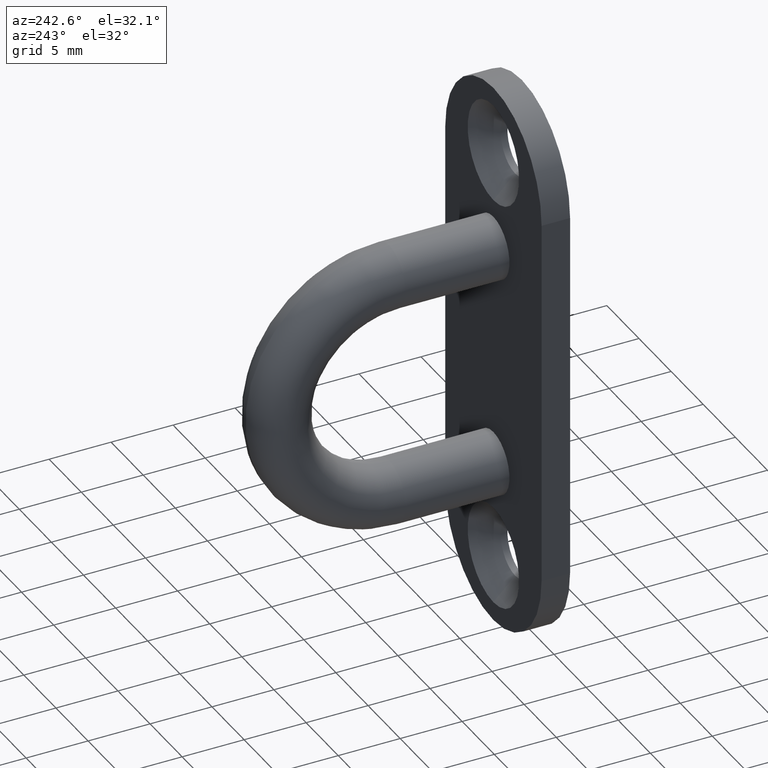
[diagram: clean part render]
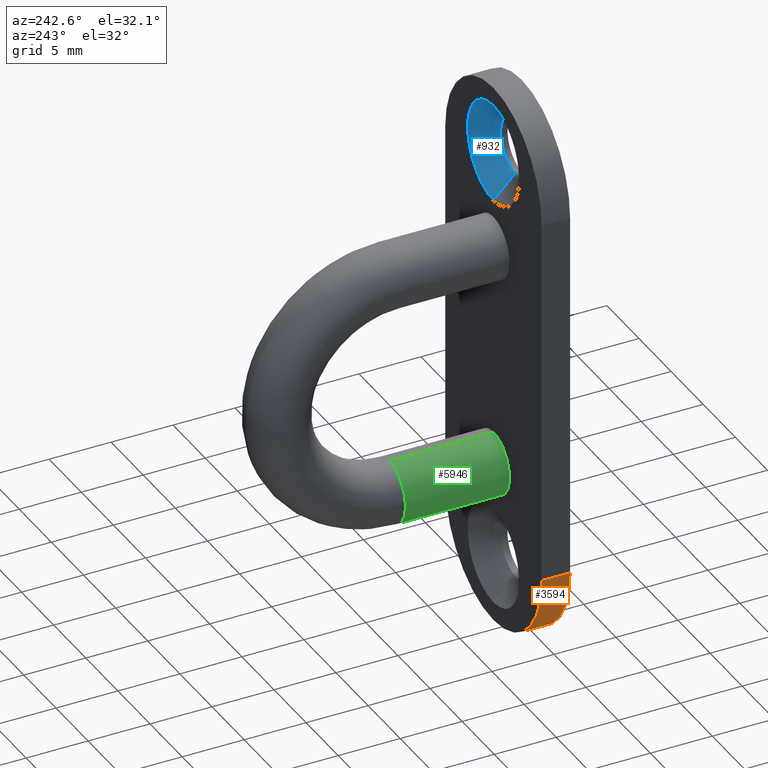
[diagram: same view with three faces highlighted in distinct colors, each labeled with its STEP entity id]
A machine part, auxiliary view with three faces highlighted in distinct colors.
Their STEP definitions:

[orange] entity #3594 — the highlighted cylindrical surface (partial cylindrical patch) has radius 7.5 mm, axis along (-0, -1, -0).
#407 = AXIS2_PLACEMENT_3D ( 'NONE', #5144, #12384, #13483 ) ;
#821 = EDGE_CURVE ( 'NONE', #8205, #6203, #5548, .T. ) ;
#969 = ORIENTED_EDGE ( 'NONE', *, *, #8778, .T. ) ;
#2470 = CARTESIAN_POINT ( 'NONE',  ( -7.464513823374346600E-015, 2.299999999999999800, -22.50000000000001100 ) ) ;
#3094 = CIRCLE ( 'NONE', #5917, 7.500000000000010700 ) ;
#3114 = DIRECTION ( 'NONE',  ( 0.0000000000000000000, 1.000000000000000000, 0.0000000000000000000 ) ) ;
#3124 = CARTESIAN_POINT ( 'NONE',  ( -7.500000000000005300, 2.299999999999999800, -15.00000000000000000 ) ) ;
#3594 = ADVANCED_FACE ( 'NONE', ( #7540 ), #12568, .T. ) ;
#3914 = VECTOR ( 'NONE', #6634, 1000.000000000000000 ) ;
#4064 = CARTESIAN_POINT ( 'NONE',  ( -7.464513823374346600E-015, 2.299999999999999800, -22.50000000000001400 ) ) ;
#4976 = CIRCLE ( 'NONE', #407, 7.500000000000010700 ) ;
#5144 = CARTESIAN_POINT ( 'NONE',  ( -7.464513823374346600E-015, 0.0000000000000000000, -15.00000000000000000 ) ) ;
#5548 = LINE ( 'NONE', #5781, #3914 ) ;
#5781 = CARTESIAN_POINT ( 'NONE',  ( -7.500000000000005300, 2.299999999999999800, -15.00000000000000000 ) ) ;
#5864 = CARTESIAN_POINT ( 'NONE',  ( -7.500000000000005300, 0.0000000000000000000, -15.00000000000000000 ) ) ;
#5917 = AXIS2_PLACEMENT_3D ( 'NONE', #8348, #3114, #9481 ) ;
#5971 = DIRECTION ( 'NONE',  ( 0.0000000000000000000, 0.0000000000000000000, -1.000000000000000000 ) ) ;
#6203 = VERTEX_POINT ( 'NONE', #5864 ) ;
#6272 = ORIENTED_EDGE ( 'NONE', *, *, #821, .F. ) ;
#6590 = LINE ( 'NONE', #2470, #9540 ) ;
#6634 = DIRECTION ( 'NONE',  ( -0.0000000000000000000, -1.000000000000000000, -0.0000000000000000000 ) ) ;
#7042 = DIRECTION ( 'NONE',  ( -0.0000000000000000000, -1.000000000000000000, -0.0000000000000000000 ) ) ;
#7388 = AXIS2_PLACEMENT_3D ( 'NONE', #12073, #7042, #5971 ) ;
#7540 = FACE_OUTER_BOUND ( 'NONE', #7820, .T. ) ;
#7658 = ORIENTED_EDGE ( 'NONE', *, *, #12894, .F. ) ;
#7820 = EDGE_LOOP ( 'NONE', ( #7658, #969, #9213, #6272 ) ) ;
#8130 = VERTEX_POINT ( 'NONE', #12395 ) ;
#8205 = VERTEX_POINT ( 'NONE', #3124 ) ;
#8299 = VERTEX_POINT ( 'NONE', #4064 ) ;
#8348 = CARTESIAN_POINT ( 'NONE',  ( -7.464513823374346600E-015, 2.299999999999999800, -15.00000000000000000 ) ) ;
#8778 = EDGE_CURVE ( 'NONE', #8299, #8130, #6590, .T. ) ;
#9213 = ORIENTED_EDGE ( 'NONE', *, *, #10043, .T. ) ;
#9481 = DIRECTION ( 'NONE',  ( 0.0000000000000000000, 0.0000000000000000000, 1.000000000000000000 ) ) ;
#9540 = VECTOR ( 'NONE', #12909, 1000.000000000000000 ) ;
#10043 = EDGE_CURVE ( 'NONE', #8130, #6203, #4976, .T. ) ;
#12073 = CARTESIAN_POINT ( 'NONE',  ( -7.464513823374346600E-015, 2.299999999999999800, -15.00000000000000000 ) ) ;
#12384 = DIRECTION ( 'NONE',  ( 0.0000000000000000000, 1.000000000000000000, 0.0000000000000000000 ) ) ;
#12395 = CARTESIAN_POINT ( 'NONE',  ( -7.464513823374346600E-015, 0.0000000000000000000, -22.50000000000001400 ) ) ;
#12568 = CYLINDRICAL_SURFACE ( 'NONE', #7388, 7.500000000000009800 ) ;
#12894 = EDGE_CURVE ( 'NONE', #8299, #8205, #3094, .T. ) ;
#12909 = DIRECTION ( 'NONE',  ( -0.0000000000000000000, -1.000000000000000000, -0.0000000000000000000 ) ) ;
#13483 = DIRECTION ( 'NONE',  ( 0.0000000000000000000, 0.0000000000000000000, 1.000000000000000000 ) ) ;

[blue] entity #932 — the highlighted conical surface has half-angle 45 deg.
#308 = CARTESIAN_POINT ( 'NONE',  ( 6.000769315822030900E-015, 0.5500000000000088200, 17.00000000000000000 ) ) ;
#850 = ORIENTED_EDGE ( 'NONE', *, *, #10717, .T. ) ;
#860 = DIRECTION ( 'NONE',  ( -0.0000000000000000000, -1.000000000000000000, -0.0000000000000000000 ) ) ;
#896 = VECTOR ( 'NONE', #3052, 999.9999999999998900 ) ;
#932 = ADVANCED_FACE ( 'NONE', ( #1649 ), #12374, .F. ) ;
#992 = ORIENTED_EDGE ( 'NONE', *, *, #8381, .F. ) ;
#1486 = DIRECTION ( 'NONE',  ( 0.0000000000000000000, 1.000000000000000000, 0.0000000000000000000 ) ) ;
#1649 = FACE_OUTER_BOUND ( 'NONE', #12891, .T. ) ;
#1690 = CARTESIAN_POINT ( 'NONE',  ( 6.000769315822030900E-015, 0.5500000000000088200, 17.00000000000000000 ) ) ;
#1706 = AXIS2_PLACEMENT_3D ( 'NONE', #308, #1486, #10667 ) ;
#2023 = LINE ( 'NONE', #10938, #8342 ) ;
#2221 = CARTESIAN_POINT ( 'NONE',  ( 6.490628035480972300E-015, 2.299999999999999800, 13.00000000000000500 ) ) ;
#2252 = CARTESIAN_POINT ( 'NONE',  ( 6.000769315822030900E-015, 2.299999999999999800, 20.99999999999999600 ) ) ;
#2791 = VERTEX_POINT ( 'NONE', #7700 ) ;
#3021 = ORIENTED_EDGE ( 'NONE', *, *, #8465, .F. ) ;
#3052 = DIRECTION ( 'NONE',  ( 0.0000000000000000000, 0.7071067811865462400, 0.7071067811865489100 ) ) ;
#3252 = CIRCLE ( 'NONE', #8418, 3.999999999999996400 ) ;
#4207 = ORIENTED_EDGE ( 'NONE', *, *, #12022, .F. ) ;
#4353 = VERTEX_POINT ( 'NONE', #6373 ) ;
#4966 = DIRECTION ( 'NONE',  ( 0.0000000000000000000, 1.000000000000000000, 0.0000000000000000000 ) ) ;
#5387 = CIRCLE ( 'NONE', #1706, 2.249999999999998700 ) ;
#6373 = CARTESIAN_POINT ( 'NONE',  ( 6.000769315822030900E-015, 0.5500000000000088200, 14.75000000000000400 ) ) ;
#7700 = CARTESIAN_POINT ( 'NONE',  ( 6.276314845630185800E-015, 0.5500000000000088200, 19.25000000000000000 ) ) ;
#8342 = VECTOR ( 'NONE', #13116, 999.9999999999998900 ) ;
#8381 = EDGE_CURVE ( 'NONE', #2791, #4353, #5387, .T. ) ;
#8418 = AXIS2_PLACEMENT_3D ( 'NONE', #9216, #860, #11293 ) ;
#8465 = EDGE_CURVE ( 'NONE', #12911, #10538, #3252, .T. ) ;
#9216 = CARTESIAN_POINT ( 'NONE',  ( 6.000769315822030900E-015, 2.299999999999999800, 17.00000000000000000 ) ) ;
#9283 = CARTESIAN_POINT ( 'NONE',  ( 6.000769315822030900E-015, 0.5500000000000088200, 19.25000000000000000 ) ) ;
#10186 = DIRECTION ( 'NONE',  ( 0.0000000000000000000, 0.0000000000000000000, 1.000000000000000000 ) ) ;
#10252 = AXIS2_PLACEMENT_3D ( 'NONE', #1690, #4966, #10186 ) ;
#10538 = VERTEX_POINT ( 'NONE', #2252 ) ;
#10667 = DIRECTION ( 'NONE',  ( 0.0000000000000000000, 0.0000000000000000000, 1.000000000000000000 ) ) ;
#10717 = EDGE_CURVE ( 'NONE', #2791, #10538, #12429, .T. ) ;
#10938 = CARTESIAN_POINT ( 'NONE',  ( 6.276314845630185800E-015, 0.5500000000000088200, 14.75000000000000400 ) ) ;
#11293 = DIRECTION ( 'NONE',  ( 0.0000000000000000000, 0.0000000000000000000, 1.000000000000000000 ) ) ;
#12022 = EDGE_CURVE ( 'NONE', #4353, #12911, #2023, .T. ) ;
#12374 = CONICAL_SURFACE ( 'NONE', #10252, 2.249999999999998700, 0.7853981633974500600 ) ;
#12429 = LINE ( 'NONE', #9283, #896 ) ;
#12891 = EDGE_LOOP ( 'NONE', ( #4207, #992, #850, #3021 ) ) ;
#12911 = VERTEX_POINT ( 'NONE', #2221 ) ;
#13116 = DIRECTION ( 'NONE',  ( 8.659560562354947600E-017, 0.7071067811865462400, -0.7071067811865489100 ) ) ;

[green] entity #5946 — the highlighted cylindrical surface (edge-blend (fillet) strip) has radius 2.5 mm, axis along (0, -1, -0).
#214 = CIRCLE ( 'NONE', #2762, 2.500000000000000400 ) ;
#290 = CARTESIAN_POINT ( 'NONE',  ( 0.0000000000000000000, 10.69999999999999900, -11.60000000000000100 ) ) ;
#918 = VERTEX_POINT ( 'NONE', #11177 ) ;
#1028 = DIRECTION ( 'NONE',  ( 0.0000000000000000000, -1.000000000000000000, -8.106184467181343200E-017 ) ) ;
#1319 = CIRCLE ( 'NONE', #9101, 2.500000000000000400 ) ;
#1957 = CARTESIAN_POINT ( 'NONE',  ( 0.0000000000000000000, 10.69999999999999900, -9.099999999999999600 ) ) ;
#2187 = ORIENTED_EDGE ( 'NONE', *, *, #3934, .F. ) ;
#2481 = EDGE_LOOP ( 'NONE', ( #10185, #3022, #3400, #2187 ) ) ;
#2762 = AXIS2_PLACEMENT_3D ( 'NONE', #6742, #8918, #3643 ) ;
#2818 = VECTOR ( 'NONE', #1028, 1000.000000000000000 ) ;
#2969 = FACE_OUTER_BOUND ( 'NONE', #2481, .T. ) ;
#3022 = ORIENTED_EDGE ( 'NONE', *, *, #8513, .F. ) ;
#3220 = DIRECTION ( 'NONE',  ( 0.0000000000000000000, -1.000000000000000000, -8.106184467181343200E-017 ) ) ;
#3227 = EDGE_CURVE ( 'NONE', #7579, #918, #9650, .T. ) ;
#3400 = ORIENTED_EDGE ( 'NONE', *, *, #3227, .T. ) ;
#3643 = DIRECTION ( 'NONE',  ( 0.0000000000000000000, 0.0000000000000000000, 1.000000000000000000 ) ) ;
#3934 = EDGE_CURVE ( 'NONE', #8490, #918, #214, .T. ) ;
#5141 = DIRECTION ( 'NONE',  ( 0.0000000000000000000, -1.000000000000000000, -8.106184467181343200E-017 ) ) ;
#5330 = CARTESIAN_POINT ( 'NONE',  ( 0.0000000000000000000, 10.69999999999999900, -9.099999999999999600 ) ) ;
#5946 = ADVANCED_FACE ( 'NONE', ( #2969 ), #12710, .T. ) ;
#6090 = DIRECTION ( 'NONE',  ( 0.0000000000000000000, 0.0000000000000000000, 1.000000000000000000 ) ) ;
#6742 = CARTESIAN_POINT ( 'NONE',  ( 0.0000000000000000000, 2.299999999999999800, -9.099999999999999600 ) ) ;
#6858 = LINE ( 'NONE', #9263, #10590 ) ;
#7579 = VERTEX_POINT ( 'NONE', #290 ) ;
#8214 = DIRECTION ( 'NONE',  ( 0.0000000000000000000, 1.000000000000000000, 1.224646799147353200E-016 ) ) ;
#8487 = AXIS2_PLACEMENT_3D ( 'NONE', #5330, #3220, #12575 ) ;
#8490 = VERTEX_POINT ( 'NONE', #9076 ) ;
#8513 = EDGE_CURVE ( 'NONE', #7579, #10023, #1319, .T. ) ;
#8918 = DIRECTION ( 'NONE',  ( -0.0000000000000000000, -1.000000000000000000, -0.0000000000000000000 ) ) ;
#9076 = CARTESIAN_POINT ( 'NONE',  ( 3.061616997868383600E-016, 2.299999999999999800, -6.599999999999999600 ) ) ;
#9101 = AXIS2_PLACEMENT_3D ( 'NONE', #1957, #8214, #6090 ) ;
#9263 = CARTESIAN_POINT ( 'NONE',  ( 3.061616997868383600E-016, 10.69999999999999900, -6.599999999999999600 ) ) ;
#9650 = LINE ( 'NONE', #11374, #2818 ) ;
#10023 = VERTEX_POINT ( 'NONE', #11478 ) ;
#10185 = ORIENTED_EDGE ( 'NONE', *, *, #12927, .F. ) ;
#10590 = VECTOR ( 'NONE', #5141, 1000.000000000000000 ) ;
#11177 = CARTESIAN_POINT ( 'NONE',  ( 0.0000000000000000000, 2.299999999999999800, -11.60000000000000100 ) ) ;
#11374 = CARTESIAN_POINT ( 'NONE',  ( 0.0000000000000000000, 10.69999999999999900, -11.60000000000000100 ) ) ;
#11478 = CARTESIAN_POINT ( 'NONE',  ( 3.061616997868383600E-016, 10.69999999999999900, -6.599999999999999600 ) ) ;
#12575 = DIRECTION ( 'NONE',  ( 0.0000000000000000000, 0.0000000000000000000, -1.000000000000000000 ) ) ;
#12710 = CYLINDRICAL_SURFACE ( 'NONE', #8487, 2.500000000000000400 ) ;
#12927 = EDGE_CURVE ( 'NONE', #10023, #8490, #6858, .T. ) ;